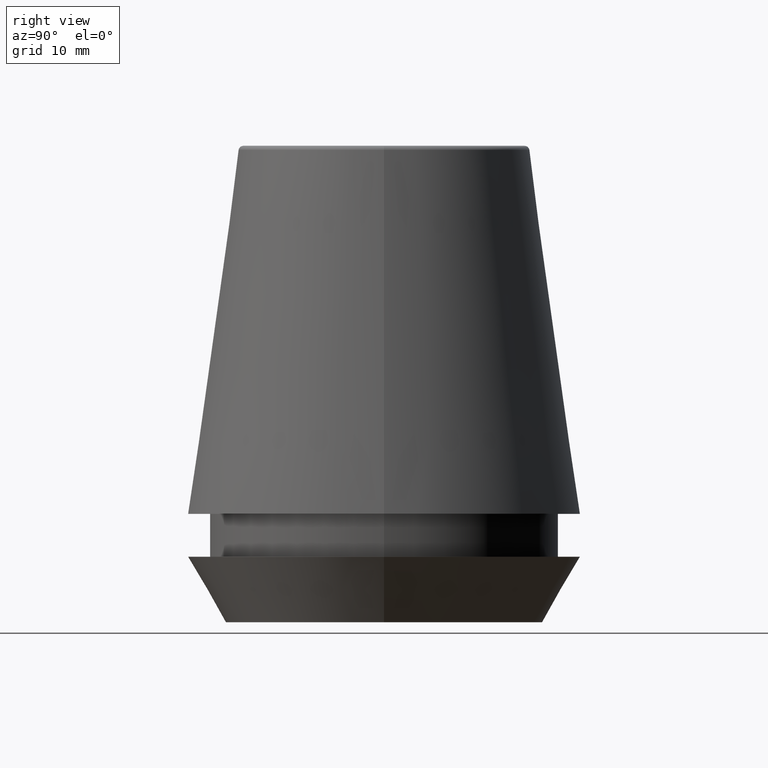
[diagram: clean part render]
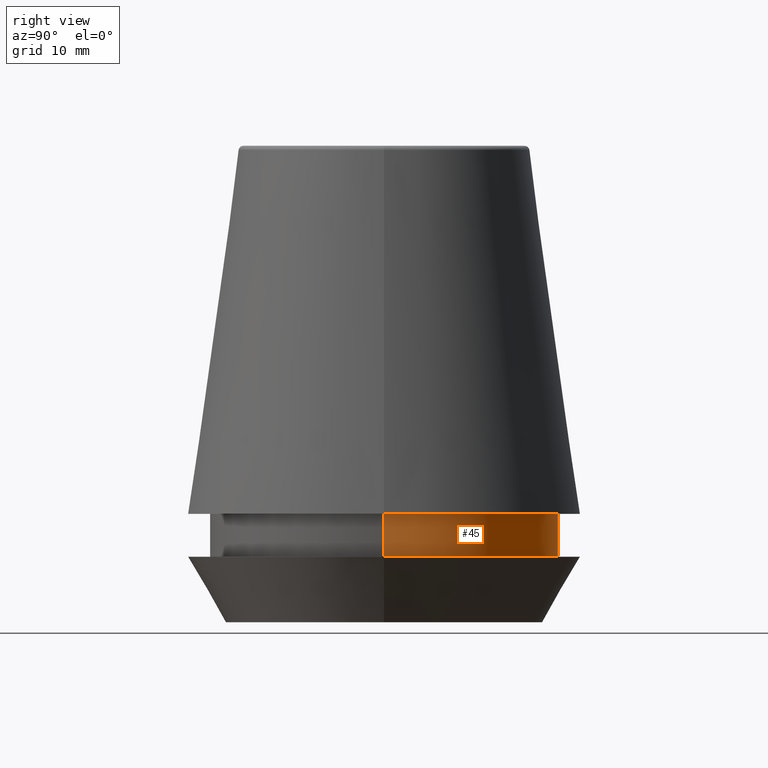
[diagram: same view with one face highlighted and labeled with its STEP entity id]
A machine part, right view. The second image highlights one B-rep face of the part: STEP entity #45.
In plain terms, the highlighted cylindrical surface (partial cylindrical patch) has radius 14.6 mm, axis along (-0, -0, 1).
Its self-contained STEP definition (entity closure, byte-faithful):
#4 = CYLINDRICAL_SURFACE ( 'NONE', #236, 14.60000000000000000 ) ;
#12 = VERTEX_POINT ( 'NONE', #91 ) ;
#27 = VERTEX_POINT ( 'NONE', #85 ) ;
#36 = DIRECTION ( 'NONE',  ( -0.0000000000000000000, -0.0000000000000000000, 1.000000000000000000 ) ) ;
#44 = AXIS2_PLACEMENT_3D ( 'NONE', #344, #138, #251 ) ;
#45 = ADVANCED_FACE ( 'NONE', ( #264 ), #4, .T. ) ;
#46 = AXIS2_PLACEMENT_3D ( 'NONE', #280, #36, #219 ) ;
#55 = ORIENTED_EDGE ( 'NONE', *, *, #191, .T. ) ;
#85 = CARTESIAN_POINT ( 'NONE',  ( -14.60000000000000000, 1.787984326755135800E-015, 9.099999999999997900 ) ) ;
#91 = CARTESIAN_POINT ( 'NONE',  ( -14.60000000000000000, 1.787984326755135800E-015, 5.500000000000005300 ) ) ;
#101 = LINE ( 'NONE', #185, #281 ) ;
#104 = CARTESIAN_POINT ( 'NONE',  ( 14.60000000000000000, 0.0000000000000000000, 5.500000000000005300 ) ) ;
#138 = DIRECTION ( 'NONE',  ( -0.0000000000000000000, -0.0000000000000000000, 1.000000000000000000 ) ) ;
#143 = ORIENTED_EDGE ( 'NONE', *, *, #212, .T. ) ;
#154 = EDGE_CURVE ( 'NONE', #286, #262, #101, .T. ) ;
#185 = CARTESIAN_POINT ( 'NONE',  ( 14.60000000000000000, 0.0000000000000000000, 101.8074564848000400 ) ) ;
#190 = CARTESIAN_POINT ( 'NONE',  ( -14.60000000000000000, 1.787984326755135800E-015, 101.8074564848000400 ) ) ;
#191 = EDGE_CURVE ( 'NONE', #286, #12, #355, .T. ) ;
#207 = EDGE_LOOP ( 'NONE', ( #55, #143, #327, #214 ) ) ;
#212 = EDGE_CURVE ( 'NONE', #12, #27, #300, .T. ) ;
#214 = ORIENTED_EDGE ( 'NONE', *, *, #154, .F. ) ;
#218 = VECTOR ( 'NONE', #342, 1000.000000000000000 ) ;
#219 = DIRECTION ( 'NONE',  ( 1.000000000000000000, 0.0000000000000000000, 0.0000000000000000000 ) ) ;
#221 = EDGE_CURVE ( 'NONE', #262, #27, #231, .T. ) ;
#231 = CIRCLE ( 'NONE', #44, 14.60000000000000000 ) ;
#236 = AXIS2_PLACEMENT_3D ( 'NONE', #338, #370, #266 ) ;
#251 = DIRECTION ( 'NONE',  ( 1.000000000000000000, 0.0000000000000000000, 0.0000000000000000000 ) ) ;
#262 = VERTEX_POINT ( 'NONE', #380 ) ;
#264 = FACE_OUTER_BOUND ( 'NONE', #207, .T. ) ;
#266 = DIRECTION ( 'NONE',  ( 1.000000000000000000, 0.0000000000000000000, 0.0000000000000000000 ) ) ;
#280 = CARTESIAN_POINT ( 'NONE',  ( 0.0000000000000000000, 0.0000000000000000000, 5.500000000000005300 ) ) ;
#281 = VECTOR ( 'NONE', #303, 1000.000000000000000 ) ;
#286 = VERTEX_POINT ( 'NONE', #104 ) ;
#300 = LINE ( 'NONE', #190, #218 ) ;
#303 = DIRECTION ( 'NONE',  ( -0.0000000000000000000, -0.0000000000000000000, 1.000000000000000000 ) ) ;
#327 = ORIENTED_EDGE ( 'NONE', *, *, #221, .F. ) ;
#338 = CARTESIAN_POINT ( 'NONE',  ( 0.0000000000000000000, 0.0000000000000000000, 101.8074564848000400 ) ) ;
#342 = DIRECTION ( 'NONE',  ( -0.0000000000000000000, -0.0000000000000000000, 1.000000000000000000 ) ) ;
#344 = CARTESIAN_POINT ( 'NONE',  ( 0.0000000000000000000, 0.0000000000000000000, 9.099999999999997900 ) ) ;
#355 = CIRCLE ( 'NONE', #46, 14.60000000000000000 ) ;
#370 = DIRECTION ( 'NONE',  ( -0.0000000000000000000, -0.0000000000000000000, 1.000000000000000000 ) ) ;
#380 = CARTESIAN_POINT ( 'NONE',  ( 14.60000000000000000, 0.0000000000000000000, 9.099999999999997900 ) ) ;